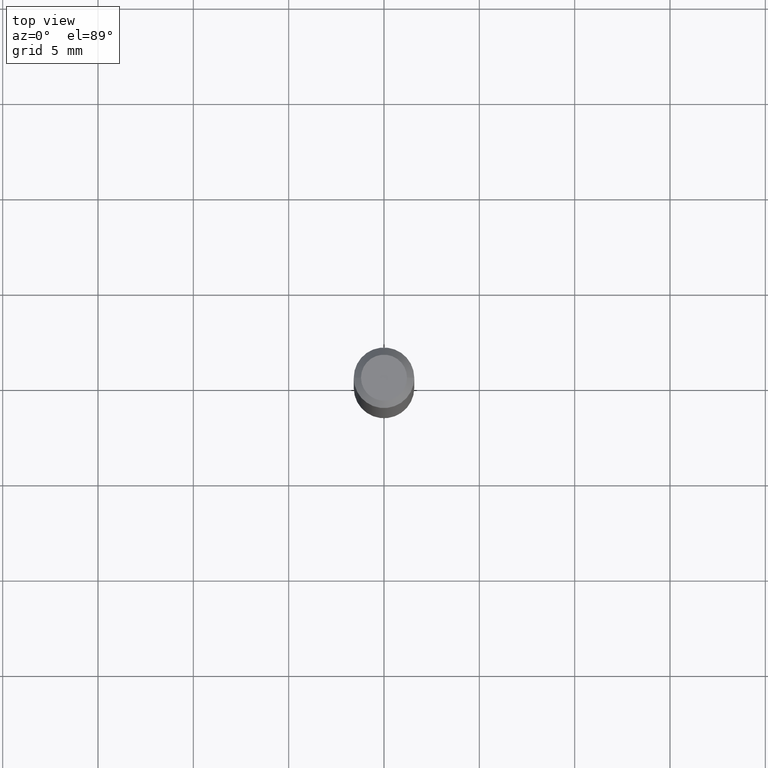
[diagram: clean part render]
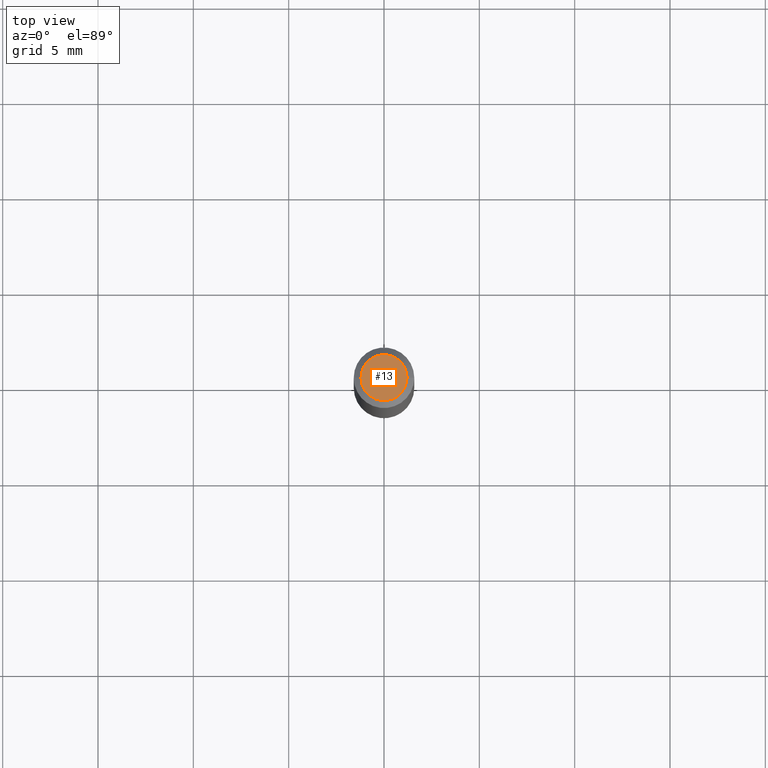
[diagram: same view with one face highlighted and labeled with its STEP entity id]
A machine part, top view. The second image highlights one B-rep face of the part: STEP entity #13.
In plain terms, the highlighted planar face has unit normal (0, -0, -1).
Its self-contained STEP definition (entity closure, byte-faithful):
#3 = CARTESIAN_POINT ( 'NONE',  ( 0.04749999999999999362, -4.035134999187579116E-16, -3.319333953586984624E-17 ) ) ;
#13 = ADVANCED_FACE ( 'NONE', ( #157 ), #260, .F. ) ;
#16 = EDGE_CURVE ( 'NONE', #55, #337, #400, .T. ) ;
#51 = DIRECTION ( 'NONE',  ( 1.000000000000000000, -6.982962677686267499E-15, 4.876681293081646444E-29 ) ) ;
#55 = VERTEX_POINT ( 'NONE', #199 ) ;
#61 = CARTESIAN_POINT ( 'NONE',  ( 8.117327640808780352E-46, -1.158939255633829398E-31, -3.319333953587241620E-17 ) ) ;
#75 = AXIS2_PLACEMENT_3D ( 'NONE', #190, #262, #51 ) ;
#157 = FACE_OUTER_BOUND ( 'NONE', #354, .T. ) ;
#165 = ORIENTED_EDGE ( 'NONE', *, *, #179, .T. ) ;
#179 = EDGE_CURVE ( 'NONE', #337, #55, #350, .T. ) ;
#190 = CARTESIAN_POINT ( 'NONE',  ( 8.117327640808780352E-46, -1.158939255633829398E-31, -3.319333953587241620E-17 ) ) ;
#199 = CARTESIAN_POINT ( 'NONE',  ( -0.04749999999999999362, 3.578768372314210506E-16, -3.319333953587482593E-17 ) ) ;
#204 = DIRECTION ( 'NONE',  ( 1.000000000000000000, -6.982962677686267499E-15, 4.876681293081646444E-29 ) ) ;
#258 = CARTESIAN_POINT ( 'NONE',  ( 3.316907271900976096E-16, 0.04749999999999999362, -1.824420333629856199E-16 ) ) ;
#260 = PLANE ( 'NONE',  #359 ) ;
#262 = DIRECTION ( 'NONE',  ( -2.445468806185136597E-29, 3.491481338843145583E-15, 1.000000000000000000 ) ) ;
#267 = DIRECTION ( 'NONE',  ( 2.438088387897960049E-29, -3.491481338843145188E-15, -1.000000000000000000 ) ) ;
#297 = DIRECTION ( 'NONE',  ( -1.000000000000000000, 6.982962677686265922E-15, -4.876176775795935793E-29 ) ) ;
#307 = DIRECTION ( 'NONE',  ( -2.445468806185136597E-29, 3.491481338843145583E-15, 1.000000000000000000 ) ) ;
#323 = AXIS2_PLACEMENT_3D ( 'NONE', #61, #307, #204 ) ;
#337 = VERTEX_POINT ( 'NONE', #3 ) ;
#350 = CIRCLE ( 'NONE', #323, 0.04749999999999999362 ) ;
#354 = EDGE_LOOP ( 'NONE', ( #389, #165 ) ) ;
#359 = AXIS2_PLACEMENT_3D ( 'NONE', #258, #267, #297 ) ;
#389 = ORIENTED_EDGE ( 'NONE', *, *, #16, .T. ) ;
#400 = CIRCLE ( 'NONE', #75, 0.04749999999999999362 ) ;